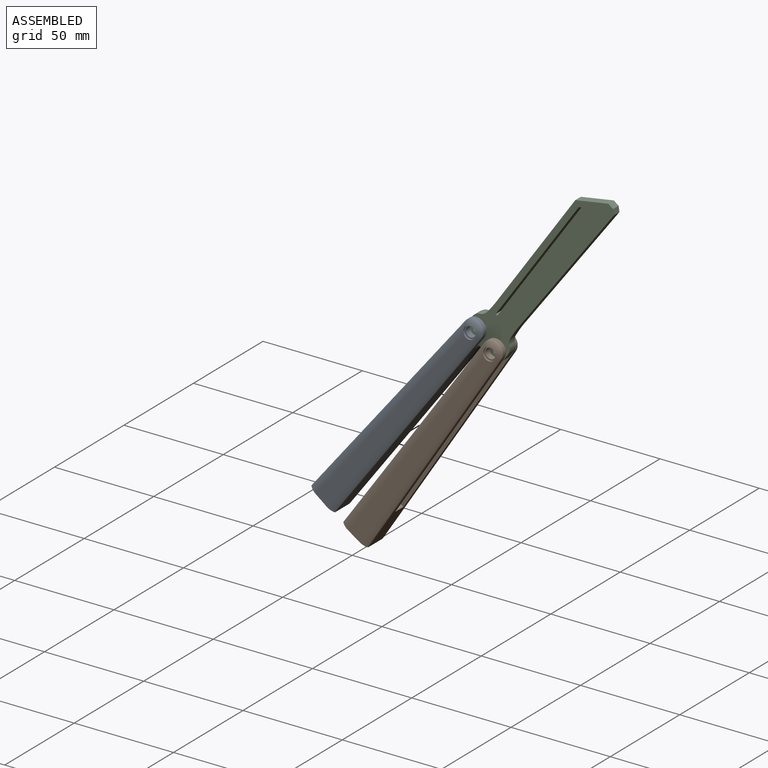
[diagram: assembled view]
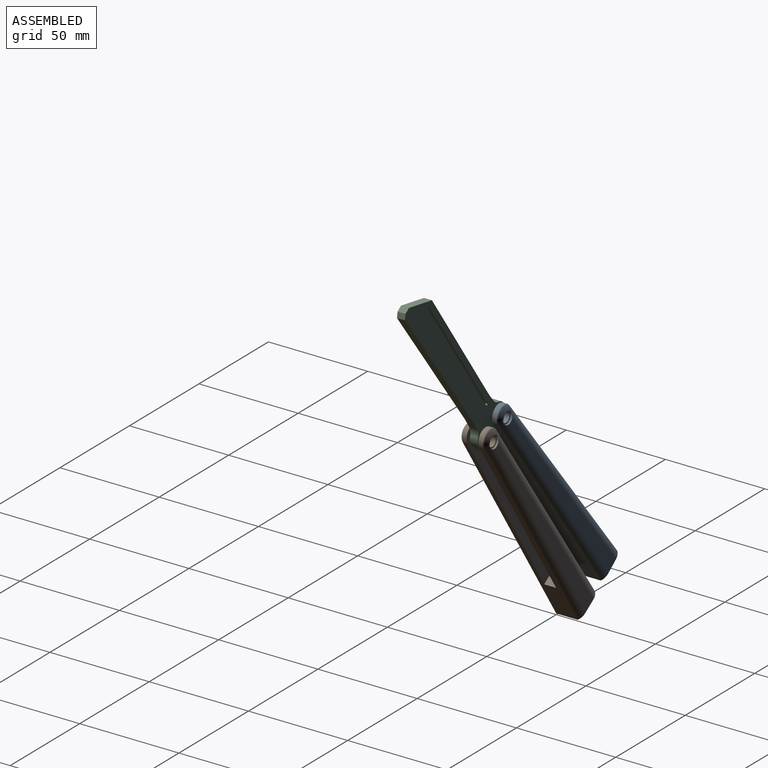
[diagram: assembled view, second angle]
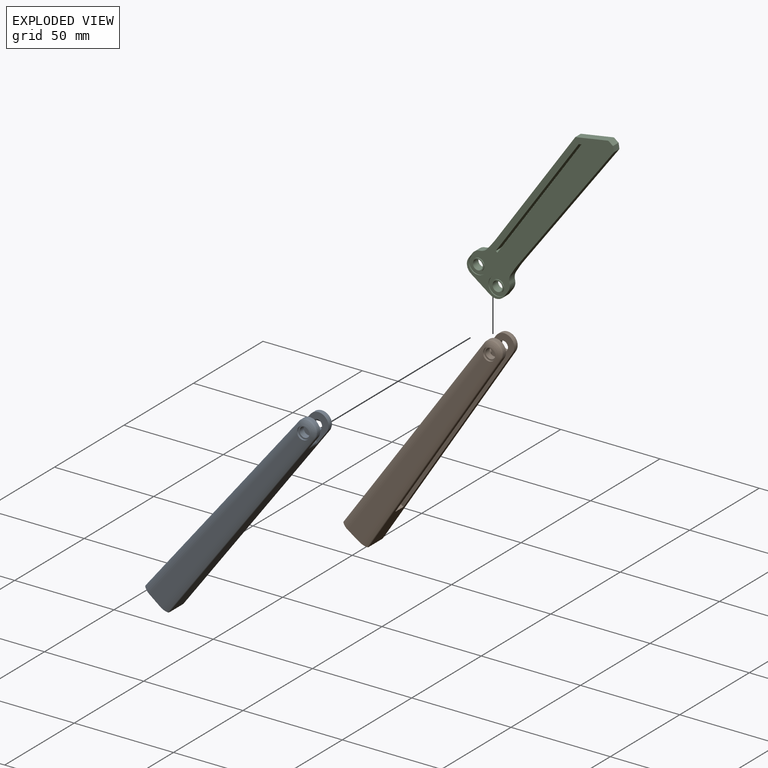
[diagram: exploded view]
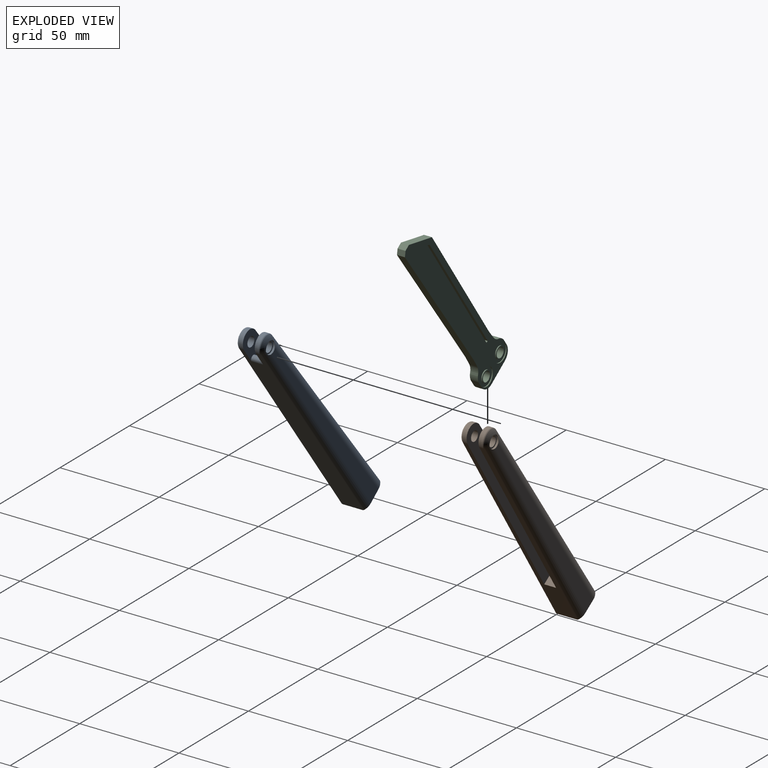
[diagram: exploded view, second angle]
ASSEMBLY  parts=3 mates=2
PART A: 45 faces, bbox 15.4x14x128.5 mm
  f0: plane 123x10.05mm, normal (1,0,0.04), area 1183.9mm2, adj f5,f9,f12,f19,f20,f22,f35,f40
  f1: plane 2.02x0.19mm, normal (-0.02,0,1), area 0.4mm2, adj f9,f12,f13,f42
  f2: cylinder r=2.5mm len=5mm, axis (0,1,0), area 47.1mm2, adj f8,f9
  f3: plane 89.25x6mm, normal (-1,0,-0.02), area 535.6mm2, adj f9,f19,f23,f24
  f4: plane 123.1x10.05mm, normal (-1,0,0), area 630mm2, adj f5,f9,f10,f13,f19,f21,f39,f44
  f5: plane 15x14mm, normal (0.02,0,-1), area 202.4mm2, adj f0,f4,f7,f17,f25,f27,f30,f34
  f6: cylinder r=3.2mm len=6.4mm, axis (0,1,0), area 16.8mm2, adj f7,f8,f25,f26,f27,f28,f29
  f7: plane 118.92x7.06mm, normal (0,-1,0), area 562.9mm2, adj f5,f6,f25,f27
  f8: plane 6.4x6.4mm, normal (0,-1,0), area 12.5mm2, adj f2,f6
  f9: plane 106.12x10.53mm, normal (0,1,0), area 856.4mm2, adj f0,f1,f2,f3,f4,f10,f11,f12
  f10: plane 6.07x6mm, normal (-0.02,0,1), area 36.4mm2, adj f4,f9,f19,f24
  f11: plane 6x0.27mm, normal (-0.04,0,1), area 1.6mm2, adj f9,f19,f22,f23
  f12: cylinder r=5mm len=5.09mm, axis (0,1,0), area 15.7mm2, adj f0,f1,f9,f41
  f13: cylinder r=5mm len=5mm, axis (0,1,0), area 15.7mm2, adj f1,f4,f9,f43
  f14: plane 2.02x0.19mm, normal (-0.02,0,1), area 0.4mm2, adj f19,f20,f21,f37
  f15: cylinder r=2.5mm len=5mm, axis (0,-1,0), area 47.1mm2, adj f18,f19
  f16: cylinder r=3.2mm len=6.4mm, axis (0,-1,0), area 16.8mm2, adj f17,f18,f30,f31,f32,f33,f34
  f17: plane 118.92x7.06mm, normal (0,1,0), area 562.9mm2, adj f5,f16,f30,f34
  f18: plane 6.4x6.4mm, normal (0,1,0), area 12.5mm2, adj f15,f16
  f19: plane 106.12x10.53mm, normal (0,-1,0), area 856.4mm2, adj f0,f3,f4,f10,f11,f14,f15,f20
  f20: cylinder r=5mm len=5.09mm, axis (0,-1,0), area 15.7mm2, adj f0,f14,f19,f36
  f21: cylinder r=5mm len=5mm, axis (0,-1,0), area 15.7mm2, adj f4,f14,f19,f38
  f22: cylinder r=1.5mm len=6mm, axis (0,-1,0), area 14.1mm2, adj f0,f9,f11,f19
  f23: cylinder r=1.5mm len=6mm, axis (0,1,0), area 14mm2, adj f3,f9,f11,f19
  f24: plane 6x3.06mm, normal (-0.72,0,0.69), area 25.5mm2, adj f3,f9,f10,f19
  f25: cylinder r=6mm len=123.09mm, axis (0,0,1), area 462.5mm2, adj f5,f6,f7,f26,f44
  f26: torus R=1.03mm, axis (0,1,0), area 13.7mm2, adj f6,f25,f28,f43
  f27: cylinder r=6mm len=123.13mm, axis (0.04,0,-1), area 462.5mm2, adj f5,f6,f7,f29,f40
  f28: cylinder r=6mm len=2.56mm, axis (1,0,0.02), area 0.5mm2, adj f6,f26,f29,f42
  f29: torus R=1.03mm, axis (0,1,0), area 13.7mm2, adj f6,f27,f28,f41
  f30: cylinder r=6mm len=123.13mm, axis (-0.04,0,1), area 462.5mm2, adj f5,f16,f17,f31,f35
  f31: torus R=1.03mm, axis (0,-1,0), area 13.7mm2, adj f16,f30,f32,f36
  f32: cylinder r=6mm len=2.72mm, axis (-1,0,-0.02), area -0.5mm2, adj f16,f31,f33,f37
  f33: torus R=1.03mm, axis (0,-1,0), area 13.7mm2, adj f16,f32,f34,f38
  f34: cylinder r=6mm len=123.09mm, axis (0,0,-1), area 462.5mm2, adj f5,f16,f17,f33,f39
  f35: cylinder r=1mm len=123.02mm, axis (-0.04,0,1), area 115.1mm2, adj f0,f5,f30,f36
  f36: torus R=4mm, axis (0,1,0), area 7.1mm2, adj f20,f31,f35,f37
  f37: cylinder r=1mm len=0.8mm, axis (-1,0,-0.02), area 0.2mm2, adj f14,f32,f36,f38
  f38: torus R=4mm, axis (0,1,0), area 7.1mm2, adj f21,f33,f37,f39
  f39: cylinder r=1mm len=123.1mm, axis (0,0,-1), area 115.1mm2, adj f4,f5,f34,f38
  f40: cylinder r=1mm len=123.02mm, axis (0.04,0,-1), area 115.1mm2, adj f0,f5,f27,f41
  f41: torus R=4mm, axis (0,-1,0), area 7.1mm2, adj f12,f29,f40,f42
  f42: cylinder r=1mm len=0.8mm, axis (1,0,0.02), area 0.2mm2, adj f1,f28,f41,f43
  f43: torus R=4mm, axis (0,-1,0), area 7.1mm2, adj f13,f26,f42,f44
  f44: cylinder r=1mm len=123.1mm, axis (0,0,1), area 115.1mm2, adj f4,f5,f25,f43
PART B: 45 faces, bbox 15.4x14x128.5 mm
  f0: plane 123x10.05mm, normal (-1,0,0.04), area 1183.9mm2, adj f5,f9,f12,f19,f20,f22,f35,f40
  f1: plane 2.02x0.19mm, normal (0.02,0,1), area 0.4mm2, adj f9,f12,f13,f42
  f2: cylinder r=2.5mm len=5mm, axis (0,1,0), area 47.1mm2, adj f8,f9
  f3: plane 89.25x6mm, normal (1,0,-0.02), area 535.6mm2, adj f9,f19,f23,f24
  f4: plane 123.1x10.05mm, normal (1,0,0), area 630mm2, adj f5,f9,f10,f13,f19,f21,f39,f44
  f5: plane 15x14mm, normal (-0.02,0,-1), area 202.4mm2, adj f0,f4,f7,f17,f25,f29,f30,f34
  f6: cylinder r=3.2mm len=6.4mm, axis (0,1,0), area 16.8mm2, adj f7,f8,f25,f26,f27,f28,f29
  f7: plane 118.92x7.06mm, normal (0,-1,0), area 562.9mm2, adj f5,f6,f25,f29
  f8: plane 6.4x6.4mm, normal (0,-1,0), area 12.5mm2, adj f2,f6
  f9: plane 106.12x10.53mm, normal (0,1,0), area 856.4mm2, adj f0,f1,f2,f3,f4,f10,f11,f12
  f10: plane 6.07x6mm, normal (0.02,0,1), area 36.4mm2, adj f4,f9,f19,f24
  f11: plane 6x0.27mm, normal (0.04,0,1), area 1.6mm2, adj f9,f19,f22,f23
  f12: cylinder r=5mm len=5.09mm, axis (0,1,0), area 15.7mm2, adj f0,f1,f9,f41
  f13: cylinder r=5mm len=5mm, axis (0,1,0), area 15.7mm2, adj f1,f4,f9,f43
  f14: plane 2.02x0.19mm, normal (0.02,0,1), area 0.4mm2, adj f19,f20,f21,f37
  f15: cylinder r=2.5mm len=5mm, axis (0,-1,0), area 47.1mm2, adj f18,f19
  f16: cylinder r=3.2mm len=6.4mm, axis (0,-1,0), area 16.8mm2, adj f17,f18,f30,f31,f32,f33,f34
  f17: plane 118.92x7.06mm, normal (0,1,0), area 562.9mm2, adj f5,f16,f30,f34
  f18: plane 6.4x6.4mm, normal (0,1,0), area 12.5mm2, adj f15,f16
  f19: plane 106.12x10.53mm, normal (0,-1,0), area 856.4mm2, adj f0,f3,f4,f10,f11,f14,f15,f20
  f20: cylinder r=5mm len=5.09mm, axis (0,-1,0), area 15.7mm2, adj f0,f14,f19,f36
  f21: cylinder r=5mm len=5mm, axis (0,-1,0), area 15.7mm2, adj f4,f14,f19,f38
  f22: cylinder r=1.5mm len=6mm, axis (0,-1,0), area 14.1mm2, adj f0,f9,f11,f19
  f23: cylinder r=1.5mm len=6mm, axis (0,1,0), area 14mm2, adj f3,f9,f11,f19
  f24: plane 6x3.06mm, normal (0.72,0,0.69), area 25.5mm2, adj f3,f9,f10,f19
  f25: cylinder r=6mm len=123.09mm, axis (0,0,-1), area 462.5mm2, adj f5,f6,f7,f26,f44
  f26: torus R=1.03mm, axis (0,1,0), area 13.7mm2, adj f6,f25,f27,f43
  f27: cylinder r=6mm len=2.72mm, axis (1,0,-0.02), area -0.5mm2, adj f6,f26,f28,f42
  f28: torus R=1.03mm, axis (0,1,0), area 13.7mm2, adj f6,f27,f29,f41
  f29: cylinder r=6mm len=123.13mm, axis (0.04,0,1), area 462.5mm2, adj f5,f6,f7,f28,f40
  f30: cylinder r=6mm len=123.09mm, axis (0,0,1), area 462.5mm2, adj f5,f16,f17,f31,f39
  f31: torus R=1.03mm, axis (0,-1,0), area 13.7mm2, adj f16,f30,f32,f38
  f32: cylinder r=6mm len=2.56mm, axis (-1,0,0.02), area 0.5mm2, adj f16,f31,f33,f37
  f33: torus R=1.03mm, axis (0,-1,0), area 13.7mm2, adj f16,f32,f34,f36
  f34: cylinder r=6mm len=123.13mm, axis (-0.04,0,-1), area 462.5mm2, adj f5,f16,f17,f33,f35
  f35: cylinder r=1mm len=123.02mm, axis (-0.04,0,-1), area 115.1mm2, adj f0,f5,f34,f36
  f36: torus R=4mm, axis (0,-1,0), area 7.1mm2, adj f20,f33,f35,f37
  f37: cylinder r=1mm len=0.8mm, axis (-1,0,0.02), area 0.2mm2, adj f14,f32,f36,f38
  f38: torus R=4mm, axis (0,-1,0), area 7.1mm2, adj f21,f31,f37,f39
  f39: cylinder r=1mm len=123.1mm, axis (0,0,1), area 115.1mm2, adj f4,f5,f30,f38
  f40: cylinder r=1mm len=123.02mm, axis (0.04,0,1), area 115.1mm2, adj f0,f5,f29,f41
  f41: torus R=4mm, axis (0,1,0), area 7.1mm2, adj f12,f28,f40,f42
  f42: cylinder r=1mm len=0.8mm, axis (1,0,-0.02), area 0.2mm2, adj f1,f27,f41,f43
  f43: torus R=4mm, axis (0,1,0), area 7.1mm2, adj f13,f26,f42,f44
  f44: cylinder r=1mm len=123.1mm, axis (0,0,-1), area 115.1mm2, adj f4,f5,f25,f43
PART C: 42 faces, bbox 22x4x104.6 mm
  f0: plane 6x6mm, normal (0,-1,0), area 8.6mm2, adj f6,f11
  f1: plane 4x3mm, normal (0,0,-1), area 12mm2, adj f7,f25,f26,f34
  f2: plane 69.85x4mm, normal (1,0,0.02), area 279.4mm2, adj f7,f25,f28,f34
  f3: plane 4x2.84mm, normal (1,0,-0.07), area 11.4mm2, adj f7,f10,f28,f34
  f4: plane 4x3.25mm, normal (1,0,0), area 13mm2, adj f7,f8,f9,f34
  f5: plane 12x4mm, normal (0,0,1), area 48mm2, adj f7,f9,f20,f34
  f6: cylinder r=2.5mm len=5mm, axis (0,1,0), area 62.8mm2, adj f0,f33
  f7: plane 104.58x22mm, normal (0,-1,0), area 1400mm2, adj f1,f2,f3,f4,f5,f8,f9,f10
  f8: cylinder r=5mm len=4mm, axis (0,-1,0), area 17.7mm2, adj f4,f7,f10,f34
  f9: cylinder r=5mm len=5mm, axis (0,1,0), area 31.4mm2, adj f4,f5,f7,f34
  f10: cylinder r=5mm len=4mm, axis (0,-1,0), area 16.4mm2, adj f3,f7,f8,f34
  f11: cylinder r=3mm len=6mm, axis (0,1,0), area 9.4mm2, adj f0,f13
  f12: cylinder r=4.6mm len=9.2mm, axis (0,1,0), area 14.5mm2, adj f7,f13
  f13: plane 9.2x9.2mm, normal (0,-1,0), area 38.2mm2, adj f11,f12
  f14: plane 6x6mm, normal (0,-1,0), area 8.6mm2, adj f18,f22
  f15: plane 79.85x4mm, normal (-1,0,0.02), area 319.4mm2, adj f7,f26,f27,f34
  f16: plane 4x2.84mm, normal (-1,0,-0.07), area 11.4mm2, adj f7,f21,f27,f34
  f17: plane 4x3.25mm, normal (-1,0,0), area 13mm2, adj f7,f19,f20,f34
  f18: cylinder r=2.5mm len=5mm, axis (0,1,0), area 62.8mm2, adj f14,f38
  f19: cylinder r=5mm len=4mm, axis (0,-1,0), area 17.7mm2, adj f7,f17,f21,f34
  f20: cylinder r=5mm len=5mm, axis (0,1,0), area 31.4mm2, adj f5,f7,f17,f34
  f21: cylinder r=5mm len=4mm, axis (0,-1,0), area 16.4mm2, adj f7,f16,f19,f34
  f22: cylinder r=3mm len=6mm, axis (0,1,0), area 9.4mm2, adj f14,f24
  f23: cylinder r=4.6mm len=9.2mm, axis (0,1,0), area 14.5mm2, adj f7,f24
  f24: plane 9.2x9.2mm, normal (0,-1,0), area 38.2mm2, adj f22,f23
  f25: plane 12x11.79mm, normal (0.71,0,-0.7), area 67.3mm2, adj f1,f2,f7,f34
  f26: plane 4x2mm, normal (-0.71,0,-0.7), area 11.2mm2, adj f1,f7,f15,f34
  f27: cylinder r=50mm len=4.23mm, axis (0,-1,0), area 16.9mm2, adj f7,f15,f16,f34
  f28: cylinder r=50mm len=4.23mm, axis (0,-1,0), area 16.9mm2, adj f2,f3,f7,f34
  f29: plane 4x1mm, normal (0,0,-1), area 4mm2, adj f7,f30,f32,f34
  f30: plane 73.96x4mm, normal (1,0,0.02), area 295.9mm2, adj f7,f29,f31,f34
  f31: plane 4x1mm, normal (-0.71,0,0.7), area 5.6mm2, adj f7,f30,f32,f34
  f32: plane 72.96x4mm, normal (-1,0,-0.02), area 291.9mm2, adj f7,f29,f31,f34
  f33: plane 6x6mm, normal (0,1,0), area 8.6mm2, adj f6,f35
  f34: plane 104.58x22mm, normal (0,1,0), area 1400mm2, adj f1,f2,f3,f4,f5,f8,f9,f10
  f35: cylinder r=3mm len=6mm, axis (0,-1,0), area 9.4mm2, adj f33,f37
  f36: cylinder r=4.6mm len=9.2mm, axis (0,-1,0), area 14.5mm2, adj f34,f37
  f37: plane 9.2x9.2mm, normal (0,1,0), area 38.2mm2, adj f35,f36
  f38: plane 6x6mm, normal (0,1,0), area 8.6mm2, adj f18,f39
  f39: cylinder r=3mm len=6mm, axis (0,-1,0), area 9.4mm2, adj f38,f41
  f40: cylinder r=4.6mm len=9.2mm, axis (0,-1,0), area 14.5mm2, adj f34,f41
  f41: plane 9.2x9.2mm, normal (0,1,0), area 38.2mm2, adj f39,f40
PLACE A rot(axis=(0,1,0),39deg) t=(-73.91,9.13,59.87)mm
PLACE B rot(axis=(0,1,0),33deg) t=(-43.8,9.13,37.99)mm
PLACE C rot(axis=(0,-1,0),144deg) t=(84.21,10.13,245.83)mm
MATE revolute C.f18 <-> B.f2  axis (0,1,0) through (17.48,12.13,143.59)mm
MATE revolute C.f6 <-> A.f2  axis (0,1,0) through (7.58,12.13,150.78)mm
